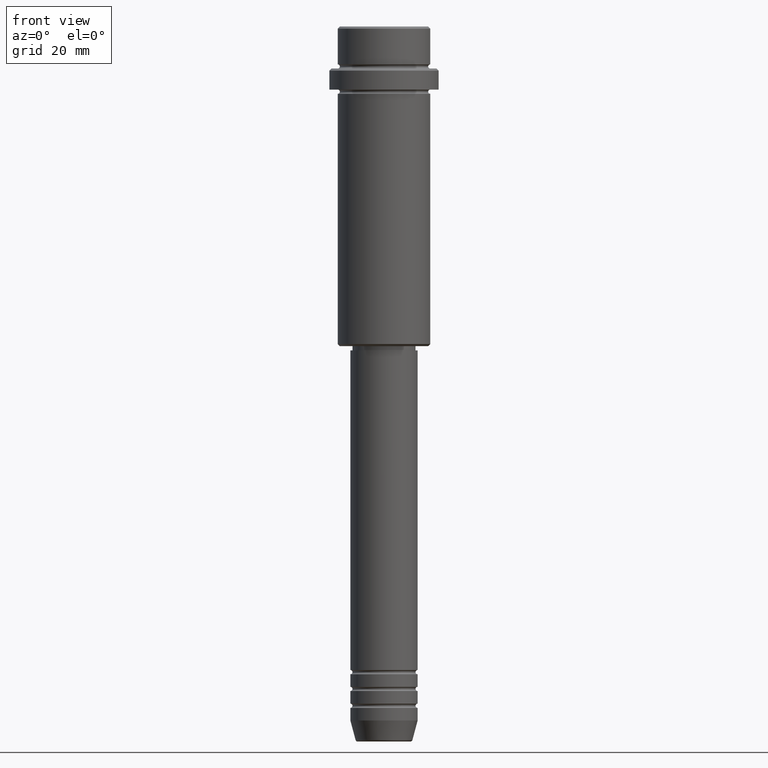
[diagram: clean part render]
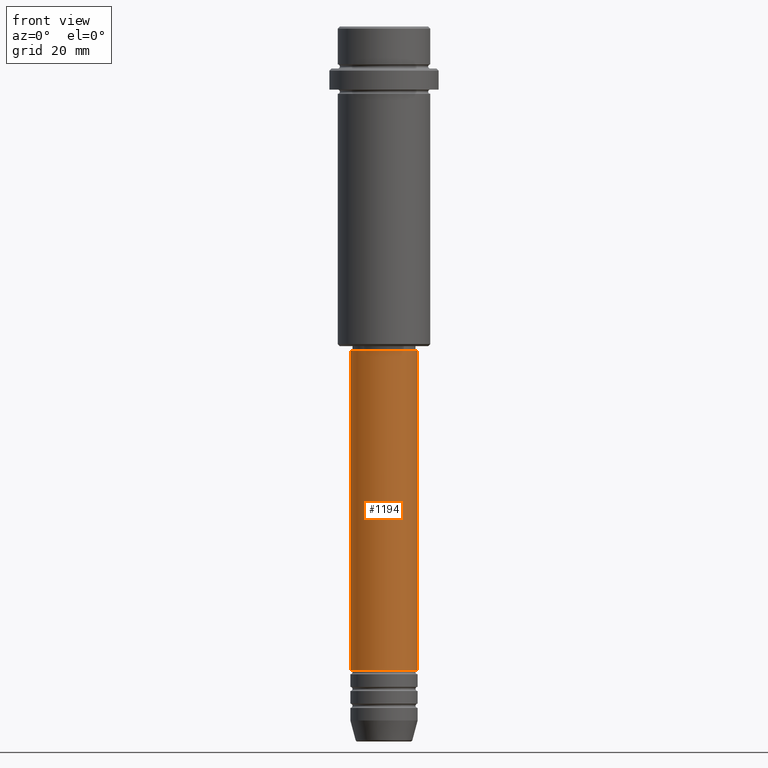
[diagram: same view with one face highlighted and labeled with its STEP entity id]
A machine part, front view. The second image highlights one B-rep face of the part: STEP entity #1194.
In plain terms, the highlighted cylindrical surface (edge-blend (fillet) strip) has radius 8 mm, axis along (-0, -0, 1).
Its self-contained STEP definition (entity closure, byte-faithful):
#9 = AXIS2_PLACEMENT_3D ( 'NONE', #222, #968, #1412 ) ;
#44 = DIRECTION ( 'NONE',  ( 1.000000000000000000, 0.000000000000000000, 0.000000000000000000 ) ) ;
#53 = CARTESIAN_POINT ( 'NONE',  ( 0.000000000000000000, 0.000000000000000000, -76.99999999999995737 ) ) ;
#87 = EDGE_CURVE ( 'NONE', #908, #184, #855, .T. ) ;
#148 = AXIS2_PLACEMENT_3D ( 'NONE', #1348, #899, #1094 ) ;
#164 = ORIENTED_EDGE ( 'NONE', *, *, #948, .F. ) ;
#178 = ORIENTED_EDGE ( 'NONE', *, *, #87, .T. ) ;
#184 = VERTEX_POINT ( 'NONE', #546 ) ;
#186 = VERTEX_POINT ( 'NONE', #772 ) ;
#222 = CARTESIAN_POINT ( 'NONE',  ( 0.000000000000000000, 0.000000000000000000, 0.000000000000000000 ) ) ;
#312 = LINE ( 'NONE', #631, #383 ) ;
#383 = VECTOR ( 'NONE', #736, 1000.000000000000000 ) ;
#465 = ORIENTED_EDGE ( 'NONE', *, *, #591, .T. ) ;
#524 = VECTOR ( 'NONE', #1385, 1000.000000000000000 ) ;
#533 = FACE_OUTER_BOUND ( 'NONE', #575, .T. ) ;
#546 = CARTESIAN_POINT ( 'NONE',  ( 8.000000000000000000, 0.000000000000000000, -76.99999999999995737 ) ) ;
#575 = EDGE_LOOP ( 'NONE', ( #1258, #465, #178, #164 ) ) ;
#591 = EDGE_CURVE ( 'NONE', #844, #908, #1002, .T. ) ;
#631 = CARTESIAN_POINT ( 'NONE',  ( -8.000000000000000000, 9.797174393178825657E-16, 0.000000000000000000 ) ) ;
#736 = DIRECTION ( 'NONE',  ( -0.000000000000000000, -0.000000000000000000, 1.000000000000000000 ) ) ;
#772 = CARTESIAN_POINT ( 'NONE',  ( -8.000000000000000000, 9.797174393178825657E-16, -76.99999999999995737 ) ) ;
#776 = DIRECTION ( 'NONE',  ( -0.000000000000000000, -0.000000000000000000, 1.000000000000000000 ) ) ;
#784 = CARTESIAN_POINT ( 'NONE',  ( 8.000000000000000000, 0.000000000000000000, -152.9999999999998863 ) ) ;
#830 = CARTESIAN_POINT ( 'NONE',  ( 8.000000000000000000, 0.000000000000000000, 0.000000000000000000 ) ) ;
#844 = VERTEX_POINT ( 'NONE', #1045 ) ;
#855 = LINE ( 'NONE', #830, #524 ) ;
#899 = DIRECTION ( 'NONE',  ( -0.000000000000000000, -0.000000000000000000, 1.000000000000000000 ) ) ;
#908 = VERTEX_POINT ( 'NONE', #784 ) ;
#937 = CIRCLE ( 'NONE', #1178, 8.000000000000000000 ) ;
#948 = EDGE_CURVE ( 'NONE', #186, #184, #937, .T. ) ;
#968 = DIRECTION ( 'NONE',  ( -0.000000000000000000, -0.000000000000000000, 1.000000000000000000 ) ) ;
#1002 = CIRCLE ( 'NONE', #148, 8.000000000000000000 ) ;
#1045 = CARTESIAN_POINT ( 'NONE',  ( -8.000000000000000000, 9.797174393178825657E-16, -152.9999999999998863 ) ) ;
#1094 = DIRECTION ( 'NONE',  ( 1.000000000000000000, 0.000000000000000000, 0.000000000000000000 ) ) ;
#1178 = AXIS2_PLACEMENT_3D ( 'NONE', #53, #776, #44 ) ;
#1185 = EDGE_CURVE ( 'NONE', #844, #186, #312, .T. ) ;
#1188 = CYLINDRICAL_SURFACE ( 'NONE', #9, 8.000000000000000000 ) ;
#1194 = ADVANCED_FACE ( 'NONE', ( #533 ), #1188, .T. ) ;
#1258 = ORIENTED_EDGE ( 'NONE', *, *, #1185, .F. ) ;
#1348 = CARTESIAN_POINT ( 'NONE',  ( 0.000000000000000000, 0.000000000000000000, -152.9999999999998863 ) ) ;
#1385 = DIRECTION ( 'NONE',  ( -0.000000000000000000, -0.000000000000000000, 1.000000000000000000 ) ) ;
#1412 = DIRECTION ( 'NONE',  ( 1.000000000000000000, 0.000000000000000000, 0.000000000000000000 ) ) ;